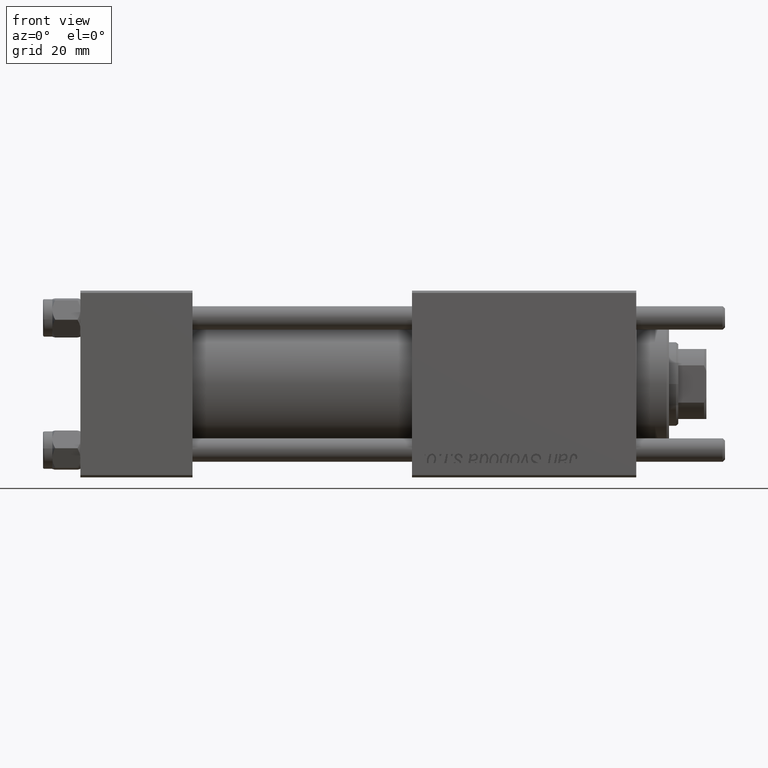
[diagram: clean part render]
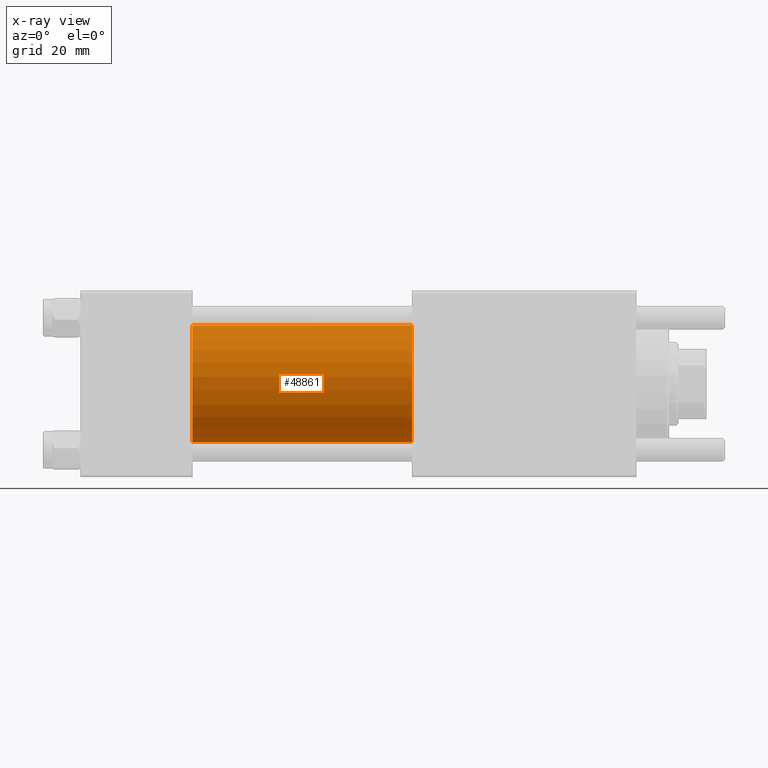
[diagram: x-ray — body ghosted, one internal face saturated and labeled with its STEP entity id]
A machine part, front view, then the same camera in x-ray: the body is ghosted and one INTERNAL B-rep face — a face not visible from any outside direction — is saturated and labeled: STEP entity #48861.
In plain terms, the highlighted cylindrical surface (partial cylindrical patch) has radius 12.5 mm, axis along (-1, -0, -0).
Its self-contained STEP definition (entity closure, byte-faithful):
#4031 = EDGE_CURVE ( 'NONE', #52474, #32411, #10057, .T. ) ;
#5496 = CYLINDRICAL_SURFACE ( 'NONE', #36288, 12.49999999999999645 ) ;
#5734 = DIRECTION ( 'NONE',  ( -1.000000000000000000, -0.000000000000000000, -0.000000000000000000 ) ) ;
#10057 = LINE ( 'NONE', #17328, #39641 ) ;
#10338 = DIRECTION ( 'NONE',  ( -1.000000000000000000, -0.000000000000000000, -0.000000000000000000 ) ) ;
#12097 = CIRCLE ( 'NONE', #44167, 12.49999999999999645 ) ;
#16813 = EDGE_CURVE ( 'NONE', #46137, #37579, #18083, .T. ) ;
#17328 = CARTESIAN_POINT ( 'NONE',  ( 71.00000000000001421, -1.071276715031019515E-15, -12.49999999999999645 ) ) ;
#18083 = LINE ( 'NONE', #31819, #25216 ) ;
#20637 = CARTESIAN_POINT ( 'NONE',  ( 71.00000000000001421, -1.071276715031019515E-15, -12.49999999999999645 ) ) ;
#23398 = CARTESIAN_POINT ( 'NONE',  ( 24.00000000000000000, -2.602085213965210642E-15, 0.000000000000000000 ) ) ;
#24228 = EDGE_LOOP ( 'NONE', ( #37434, #47719, #26383, #53118 ) ) ;
#24656 = CARTESIAN_POINT ( 'NONE',  ( 71.00000000000001421, -2.602085213965210642E-15, 12.49999999999999645 ) ) ;
#25216 = VECTOR ( 'NONE', #5734, 1000.000000000000000 ) ;
#25324 = AXIS2_PLACEMENT_3D ( 'NONE', #23398, #41722, #28528 ) ;
#26383 = ORIENTED_EDGE ( 'NONE', *, *, #53776, .F. ) ;
#27529 = FACE_OUTER_BOUND ( 'NONE', #24228, .T. ) ;
#28461 = CARTESIAN_POINT ( 'NONE',  ( 24.00000000000000000, -2.602085213965210642E-15, 12.49999999999999645 ) ) ;
#28528 = DIRECTION ( 'NONE',  ( 0.000000000000000000, 0.000000000000000000, -1.000000000000000000 ) ) ;
#31290 = CARTESIAN_POINT ( 'NONE',  ( 71.00000000000001421, -2.602085213965210642E-15, 0.000000000000000000 ) ) ;
#31819 = CARTESIAN_POINT ( 'NONE',  ( 71.00000000000001421, -2.602085213965210642E-15, 12.49999999999999645 ) ) ;
#32411 = VERTEX_POINT ( 'NONE', #52148 ) ;
#32730 = DIRECTION ( 'NONE',  ( 1.000000000000000000, 0.000000000000000000, 0.000000000000000000 ) ) ;
#35291 = EDGE_CURVE ( 'NONE', #46137, #52474, #12097, .T. ) ;
#36143 = DIRECTION ( 'NONE',  ( 0.000000000000000000, 0.000000000000000000, 1.000000000000000000 ) ) ;
#36288 = AXIS2_PLACEMENT_3D ( 'NONE', #31290, #48216, #36143 ) ;
#36726 = DIRECTION ( 'NONE',  ( 0.000000000000000000, 0.000000000000000000, -1.000000000000000000 ) ) ;
#37024 = CARTESIAN_POINT ( 'NONE',  ( 71.00000000000001421, -2.602085213965210642E-15, 0.000000000000000000 ) ) ;
#37434 = ORIENTED_EDGE ( 'NONE', *, *, #35291, .T. ) ;
#37579 = VERTEX_POINT ( 'NONE', #28461 ) ;
#39641 = VECTOR ( 'NONE', #10338, 1000.000000000000000 ) ;
#39981 = CIRCLE ( 'NONE', #25324, 12.49999999999999645 ) ;
#41722 = DIRECTION ( 'NONE',  ( 1.000000000000000000, 0.000000000000000000, 0.000000000000000000 ) ) ;
#44167 = AXIS2_PLACEMENT_3D ( 'NONE', #37024, #32730, #36726 ) ;
#46137 = VERTEX_POINT ( 'NONE', #24656 ) ;
#47719 = ORIENTED_EDGE ( 'NONE', *, *, #4031, .T. ) ;
#48216 = DIRECTION ( 'NONE',  ( -1.000000000000000000, -0.000000000000000000, -0.000000000000000000 ) ) ;
#48861 = ADVANCED_FACE ( 'NONE', ( #27529 ), #5496, .F. ) ;
#52148 = CARTESIAN_POINT ( 'NONE',  ( 24.00000000000000000, -1.071276715031019515E-15, -12.49999999999999645 ) ) ;
#52474 = VERTEX_POINT ( 'NONE', #20637 ) ;
#53118 = ORIENTED_EDGE ( 'NONE', *, *, #16813, .F. ) ;
#53776 = EDGE_CURVE ( 'NONE', #37579, #32411, #39981, .T. ) ;